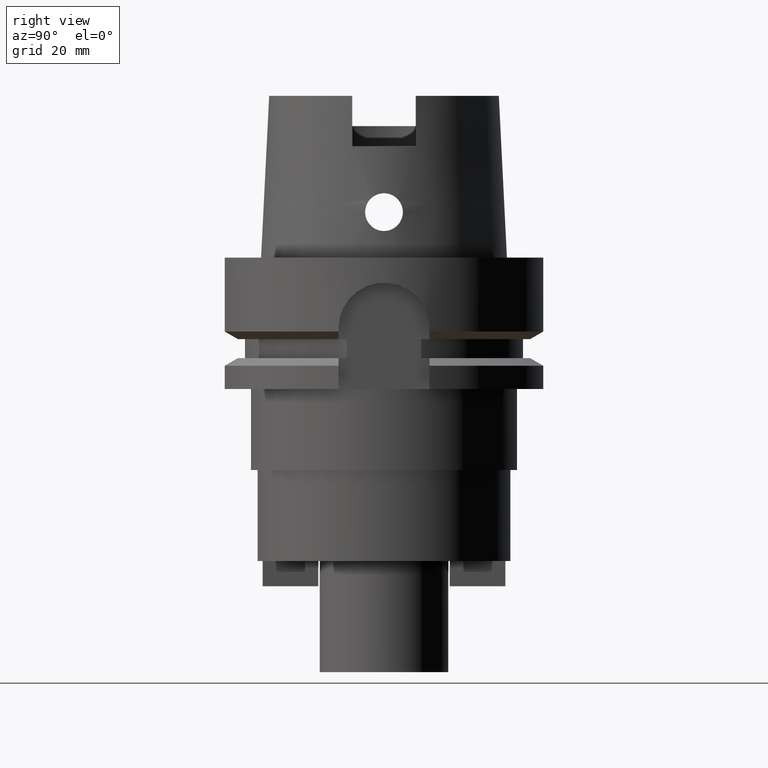
[diagram: clean part render]
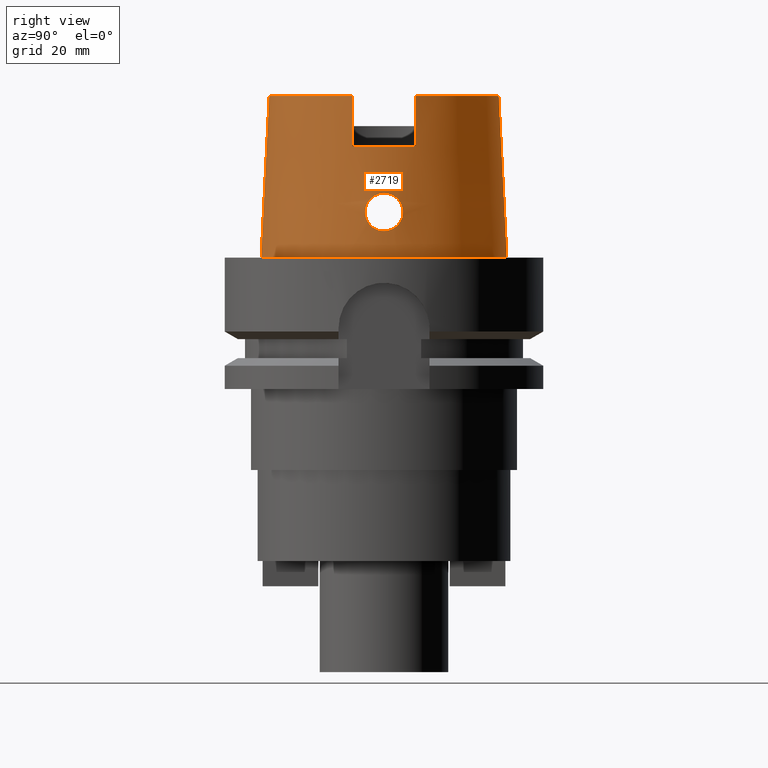
[diagram: same view with one face highlighted and labeled with its STEP entity id]
A machine part, right view. The second image highlights one B-rep face of the part: STEP entity #2719.
In plain terms, the highlighted conical surface has half-angle 2.862 deg.
Its self-contained STEP definition (entity closure, byte-faithful):
#99=CARTESIAN_POINT('',(0.E0,0.E0,3.2E1));
#100=DIRECTION('',(0.E0,0.E0,-1.E0));
#101=DIRECTION('',(9.611492277717E-1,-2.760292773492E-1,0.E0));
#102=AXIS2_PLACEMENT_3D('',#99,#100,#101);
#158=CARTESIAN_POINT('',(0.E0,0.E0,2.2E1));
#159=DIRECTION('',(0.E0,0.E0,-1.E0));
#160=DIRECTION('',(9.628367587079E-1,2.700840167076E-1,0.E0));
#161=AXIS2_PLACEMENT_3D('',#158,#159,#160);
#188=CARTESIAN_POINT('',(0.E0,0.E0,3.2E1));
#189=DIRECTION('',(0.E0,0.E0,-1.E0));
#190=DIRECTION('',(0.E0,1.E0,0.E0));
#191=AXIS2_PLACEMENT_3D('',#188,#189,#190);
#232=DIRECTION('',(0.E0,-4.993926899646E-2,-9.987522562738E-1));
#233=VECTOR('',#232,3.203997768114E1);
#234=CARTESIAN_POINT('',(0.E0,-2.271498175923E1,3.2E1));
#235=LINE('',#234,#233);
#277=CARTESIAN_POINT('',(2.183248717673E1,-6.27E0,3.2E1));
#278=CARTESIAN_POINT('',(2.189029857820E1,-6.27E0,3.088872917781E1));
#279=CARTESIAN_POINT('',(2.200587063692E1,-6.27E0,2.866629343316E1));
#280=CARTESIAN_POINT('',(2.217912536586E1,-6.27E0,2.533296005316E1));
#281=CARTESIAN_POINT('',(2.229456027086E1,-6.27E0,2.311095133481E1));
#282=CARTESIAN_POINT('',(2.235225375678E1,-6.27E0,2.2E1));
#287=CARTESIAN_POINT('',(2.235225375678E1,6.27E0,2.2E1));
#288=CARTESIAN_POINT('',(2.229456027086E1,6.27E0,2.311095133481E1));
#289=CARTESIAN_POINT('',(2.217912536586E1,6.27E0,2.533296005318E1));
#290=CARTESIAN_POINT('',(2.200587063692E1,6.27E0,2.866629343318E1));
#291=CARTESIAN_POINT('',(2.189029857820E1,6.27E0,3.088872917781E1));
#292=CARTESIAN_POINT('',(2.183248717673E1,6.27E0,3.2E1));
#297=DIRECTION('',(0.E0,4.993926899646E-2,-9.987522562738E-1));
#298=VECTOR('',#297,3.203997768114E1);
#299=CARTESIAN_POINT('',(0.E0,2.271498175923E1,3.2E1));
#300=LINE('',#299,#298);
#304=CARTESIAN_POINT('',(2.367751368058E1,-6.834353101066E-14,1.275E1));
#305=CARTESIAN_POINT('',(2.367751368058E1,-3.271078482877E-1,1.275E1));
#306=CARTESIAN_POINT('',(2.366795401008E1,-9.821026025346E-1,1.266393135660E1));
#307=CARTESIAN_POINT('',(2.362979786616E1,-1.900377264362E0,1.228323912582E1));
#308=CARTESIAN_POINT('',(2.358187638723E1,-2.688642288050E0,1.167581844743E1));
#309=CARTESIAN_POINT('',(2.354358821318E1,-3.288706379967E0,1.088956769346E1));
#310=CARTESIAN_POINT('',(2.353293383150E1,-3.664405044763E0,9.977195128145E0));
#311=CARTESIAN_POINT('',(2.356143335781E1,-3.792227113972E0,9.005554291983E0));
#312=CARTESIAN_POINT('',(2.363116395326E1,-3.666667313354E0,8.029970853309E0));
#313=CARTESIAN_POINT('',(2.373389133394E1,-3.291277755275E0,7.114360420379E0));
#314=CARTESIAN_POINT('',(2.385126898060E1,-2.688908765399E0,6.323629732226E0));
#315=CARTESIAN_POINT('',(2.395980287529E1,-1.895001878802E0,5.713294734178E0));
#316=CARTESIAN_POINT('',(2.403486176821E1,-9.761011043341E-1,5.334743881039E0));
#317=CARTESIAN_POINT('',(2.405252611747E1,-3.244970467299E-1,5.25E0));
#318=CARTESIAN_POINT('',(2.405252611747E1,0.E0,5.25E0));
#323=CARTESIAN_POINT('',(2.405252611747E1,0.E0,5.25E0));
#324=CARTESIAN_POINT('',(2.405252611747E1,3.241189787473E-1,5.25E0));
#325=CARTESIAN_POINT('',(2.403485867236E1,9.732860252361E-1,5.334797482707E0));
#326=CARTESIAN_POINT('',(2.396110118709E1,1.881334396653E0,5.706697300184E0));
#327=CARTESIAN_POINT('',(2.385405006712E1,2.671749007310E0,6.307085262656E0));
#328=CARTESIAN_POINT('',(2.373660014732E1,3.279767128131E0,7.093493215823E0));
#329=CARTESIAN_POINT('',(2.363236662472E1,3.663795711503E0,8.015490011053E0));
#330=CARTESIAN_POINT('',(2.356153074203E1,3.793004607456E0,9.001089740892E0));
#331=CARTESIAN_POINT('',(2.353287061617E1,3.664185841596E0,9.979274429980E0));
#332=CARTESIAN_POINT('',(2.354368701851E1,3.287209283133E0,1.089169112730E1));
#333=CARTESIAN_POINT('',(2.358180596648E1,2.689646000191E0,1.167429540871E1));
#334=CARTESIAN_POINT('',(2.362961193368E1,1.903794696685E0,1.228124517221E1));
#335=CARTESIAN_POINT('',(2.366789507755E1,9.847155527472E-1,1.266341330858E1));
#336=CARTESIAN_POINT('',(2.367751368058E1,3.281839436850E-1,1.275E1));
#337=CARTESIAN_POINT('',(2.367751368058E1,-6.834353101066E-14,1.275E1));
#358=CARTESIAN_POINT('',(0.E0,0.E0,-6.821210263297E-13));
#359=DIRECTION('',(0.E0,0.E0,1.E0));
#360=DIRECTION('',(0.E0,-1.E0,0.E0));
#361=AXIS2_PLACEMENT_3D('',#358,#359,#360);
#2197=CARTESIAN_POINT('',(0.E0,2.271498175923E1,3.2E1));
#2198=VERTEX_POINT('',#2197);
#2199=CARTESIAN_POINT('',(2.183248717673E1,6.27E0,3.2E1));
#2200=VERTEX_POINT('',#2199);
#2205=CARTESIAN_POINT('',(2.183248717673E1,-6.27E0,3.2E1));
#2206=VERTEX_POINT('',#2205);
#2207=CARTESIAN_POINT('',(0.E0,-2.271498175923E1,3.2E1));
#2208=VERTEX_POINT('',#2207);
#2209=CARTESIAN_POINT('',(0.E0,-2.431503482329E1,-3.410605131648E-13));
#2210=VERTEX_POINT('',#2209);
#2211=CARTESIAN_POINT('',(0.E0,2.431503482329E1,-6.821210263297E-13));
#2212=VERTEX_POINT('',#2211);
#2215=VERTEX_POINT('',#282);
#2216=CARTESIAN_POINT('',(2.235225375678E1,6.27E0,2.2E1));
#2217=VERTEX_POINT('',#2216);
#2218=VERTEX_POINT('',#304);
#2219=VERTEX_POINT('',#318);
#2697=CARTESIAN_POINT('',(0.E0,0.E0,1.6E1));
#2698=DIRECTION('',(0.E0,0.E0,-1.E0));
#2699=DIRECTION('',(0.E0,-1.E0,0.E0));
#2700=AXIS2_PLACEMENT_3D('',#2697,#2698,#2699);
#2701=CONICAL_SURFACE('',#2700,2.351500829126E1,2.8625E0);
#2702=ORIENTED_EDGE('',*,*,#2623,.T.);
#2703=ORIENTED_EDGE('',*,*,#2636,.F.);
#2704=ORIENTED_EDGE('',*,*,#2649,.T.);
#2705=ORIENTED_EDGE('',*,*,#2664,.F.);
#2706=ORIENTED_EDGE('',*,*,#2685,.T.);
#2708=ORIENTED_EDGE('',*,*,#2707,.F.);
#2709=ORIENTED_EDGE('',*,*,#2681,.F.);
#2710=ORIENTED_EDGE('',*,*,#2586,.F.);
#2711=EDGE_LOOP('',(#2702,#2703,#2704,#2705,#2706,#2708,#2709,#2710));
#2712=FACE_OUTER_BOUND('',#2711,.F.);
#2714=ORIENTED_EDGE('',*,*,#2713,.T.);
#2716=ORIENTED_EDGE('',*,*,#2715,.T.);
#2717=EDGE_LOOP('',(#2714,#2716));
#2718=FACE_BOUND('',#2717,.F.);
#103=CIRCLE('',#102,2.271498175923E1);
#162=CIRCLE('',#161,2.321499834175E1);
#192=CIRCLE('',#191,2.271498175923E1);
#283=B_SPLINE_CURVE_WITH_KNOTS('',3,(#277,#278,#279,#280,#281,#282),
.UNSPECIFIED.,.F.,.F.,(4,1,1,4),(0.E0,3.333333333333E-1,6.666666666667E-1,1.E0),
.UNSPECIFIED.);
#293=B_SPLINE_CURVE_WITH_KNOTS('',3,(#287,#288,#289,#290,#291,#292),
.UNSPECIFIED.,.F.,.F.,(4,1,1,4),(0.E0,3.333333333333E-1,6.666666666667E-1,1.E0),
.UNSPECIFIED.);
#319=B_SPLINE_CURVE_WITH_KNOTS('',3,(#304,#305,#306,#307,#308,#309,#310,#311,
#312,#313,#314,#315,#316,#317,#318),.UNSPECIFIED.,.F.,.F.,(4,1,1,1,1,1,1,1,1,1,
1,1,4),(0.E0,8.333333333333E-2,1.666666666667E-1,2.5E-1,3.333333333333E-1,
4.166666666667E-1,5.E-1,5.833333333333E-1,6.666666666667E-1,7.5E-1,
8.333333333333E-1,9.166666666667E-1,1.E0),.UNSPECIFIED.);
#338=B_SPLINE_CURVE_WITH_KNOTS('',3,(#323,#324,#325,#326,#327,#328,#329,#330,
#331,#332,#333,#334,#335,#336,#337),.UNSPECIFIED.,.F.,.F.,(4,1,1,1,1,1,1,1,1,1,
1,1,4),(0.E0,8.333333333333E-2,1.666666666667E-1,2.5E-1,3.333333333333E-1,
4.166666666667E-1,5.E-1,5.833333333333E-1,6.666666666667E-1,7.5E-1,
8.333333333333E-1,9.166666666667E-1,1.E0),.UNSPECIFIED.);
#362=CIRCLE('',#361,2.431503482329E1);
#2586=EDGE_CURVE('',#2206,#2208,#103,.T.);
#2623=EDGE_CURVE('',#2206,#2215,#283,.T.);
#2636=EDGE_CURVE('',#2217,#2215,#162,.T.);
#2649=EDGE_CURVE('',#2217,#2200,#293,.T.);
#2664=EDGE_CURVE('',#2198,#2200,#192,.T.);
#2681=EDGE_CURVE('',#2208,#2210,#235,.T.);
#2685=EDGE_CURVE('',#2198,#2212,#300,.T.);
#2707=EDGE_CURVE('',#2210,#2212,#362,.T.);
#2713=EDGE_CURVE('',#2218,#2219,#319,.T.);
#2715=EDGE_CURVE('',#2219,#2218,#338,.T.);
#2719=ADVANCED_FACE('',(#2712,#2718),#2701,.T.);